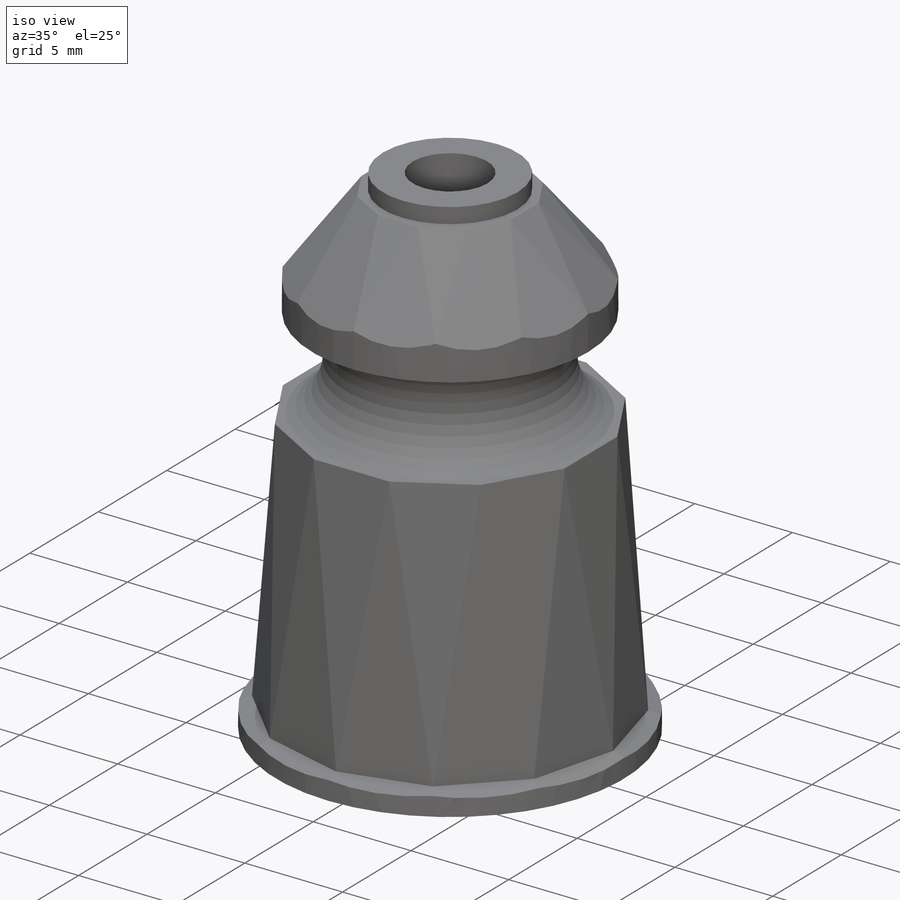
[diagram: iso view]
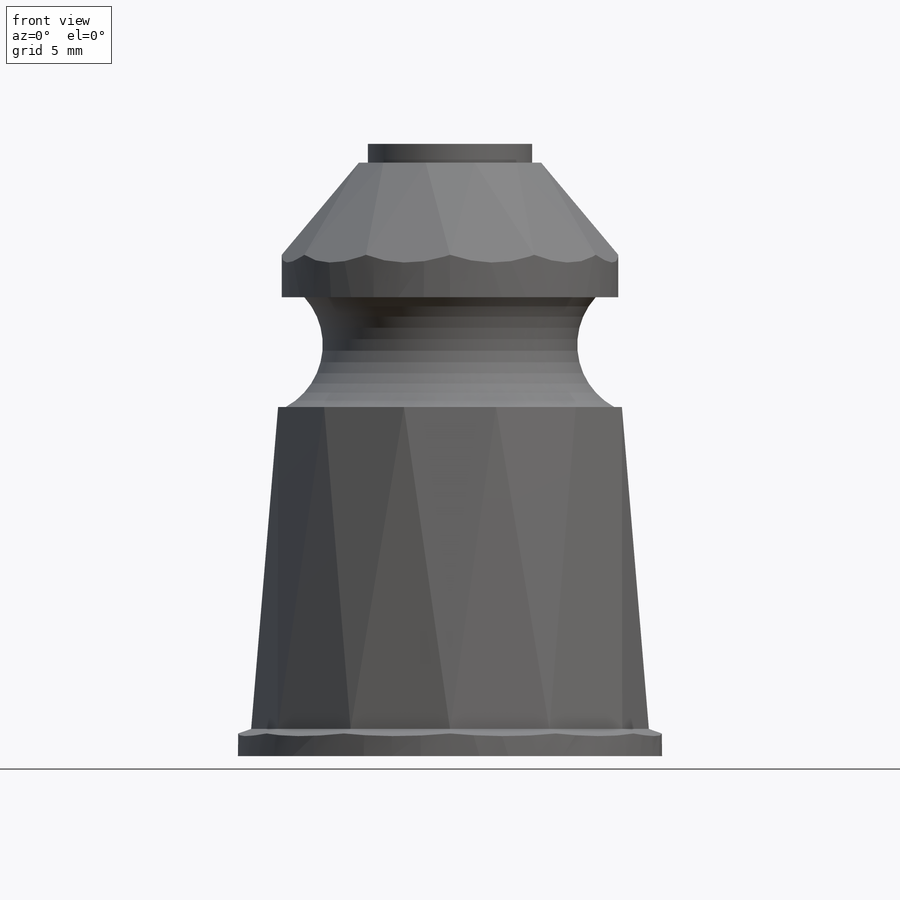
[diagram: front view]
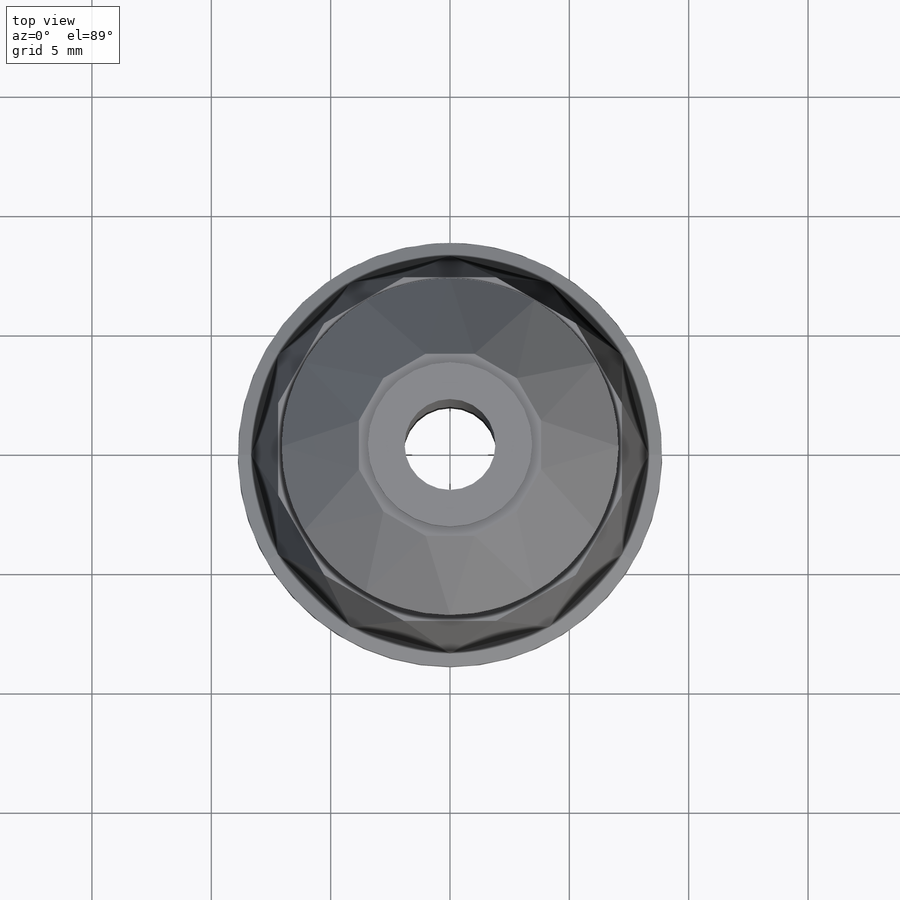
[diagram: top view]
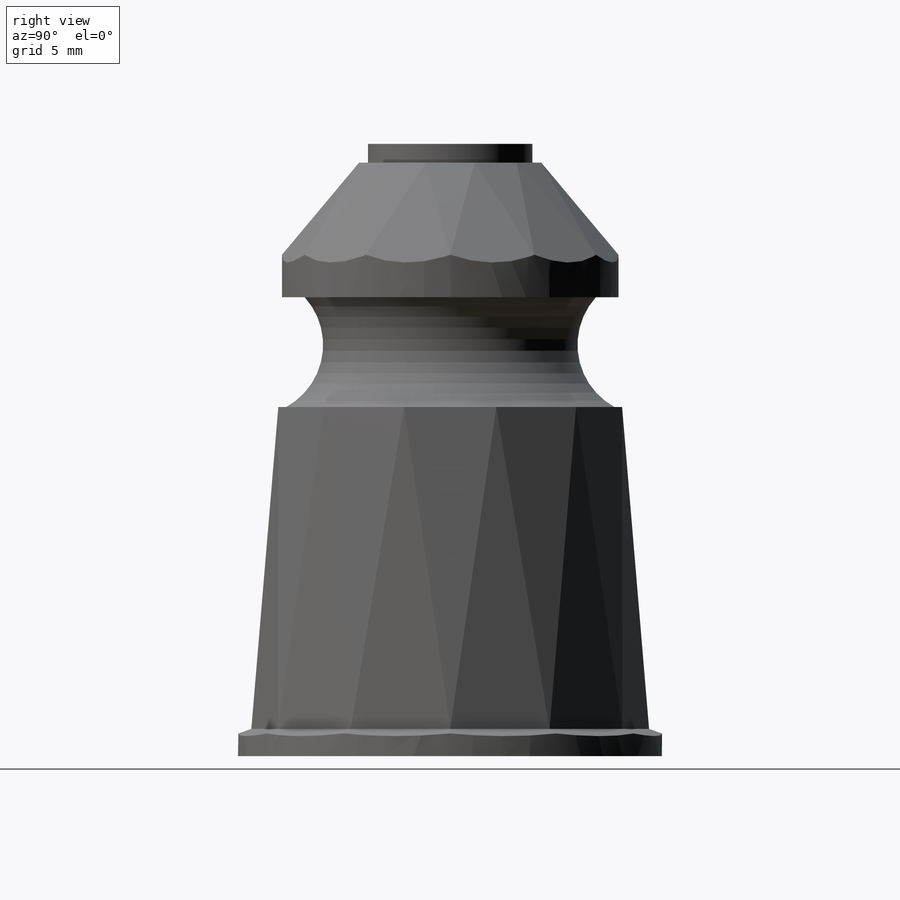
[diagram: right view]
SOLIDWORKS PART (.sldprt)
format: sldprt  version: not decoded by parser v0  size: 551,424 bytes
history: native  units: mm
features: sketch x16, cut_extrude x9, pattern_circular x4, plane x3, fillet x3, material x1, extrude x1, revolve x1 (+12 scaffold rows collapsed)
feature tree (50):
  scaffold x12  (default folders/planes/origin — collapsed)
  material  "CA"
  sketch  "Sketch1"  dims[D1=17.78mm]
  extrude  "Boss-Extrude1"  Depth=1.143mm
  plane  "Plane1"  Offset=14.6304mm
  sketch  "Sketch2"  dims[D1=14.9098mm]
  sketch  "Sketch3"  dims[D1=16.6624mm]
  sketch  "Sketch5"  dims[D1=0.254mm D2=~13.558254mm]
  cut_extrude  "Cut-Extrude1"  [1 undecoded]
  pattern_circular  "CirPattern1"  Count=12 Angle=360deg
  plane  "Plane2"
  sketch  "Sketch7"
  sketch  "Sketch8"  dims[c1.D1=~13.500405mm c2.D1=0.25deg c3.D1=~6.015216mm c3.D2=~6.015216mm c4.D2=20.0deg]
  cut_extrude  "Cut-Extrude3"  [1 undecoded]
  pattern_circular  "CirPattern2"  Count=12 Angle=360deg
  sketch  "Sketch9"  dims[c1.D3=~1.701487mm c1.D1=~6.880564mm c1.D2=~0.94307mm c2.D3=10.668mm c2.D4=19.2278mm c2.D5=14.097mm c2.D6=25.654mm c2.D7=0.7874mm c2.D8=6.8834mm c2.D9=0.508mm c2.D10=1.778mm]
  revolve  "Revolve1"  Angle=360deg
  sketch  "Sketch10"  dims[D1=~0.13335mm]
  cut_extrude  "Cut-Extrude4"  [1 undecoded]
  pattern_circular  "CirPattern3"  Count=12 Angle=30deg
  plane  "Plane3"
  sketch  "Sketch12"
  sketch  "Sketch13"  dims[D1=~1.905415mm]
  cut_extrude  "Cut-Extrude5"  [1 undecoded]
  pattern_circular  "CirPattern4"  Count=12 Angle=360deg
  sketch  "Sketch14"  dims[D1=3.81mm]
  cut_extrude  "Cut-Extrude6"  [1 undecoded]
  sketch  "Sketch15"  dims[D1=5.8674mm D2=12.7mm]
  cut_extrude  "Cut-Extrude7"  Depth=14.6304mm
  fillet  "Fillet1"  Radius=0.762mm
  sketch  "Sketch16"  dims[D1=~10.141428mm D2=13.462mm]
  cut_extrude  "Cut-Extrude8"  Depth=2.032mm
  sketch  "Sketch17"  dims[D1=~14.498444mm D2=~9.808679mm]
  cut_extrude  "Cut-Extrude9"  Depth=1.016mm
  sketch  "Sketch18"  dims[D1=0.0mm]
  cut_extrude  "Cut-Extrude10"  Depth=0.508mm
  fillet  "Fillet2"  Radius=0.508mm
  sketch  "Sketch21"  dims[D1=1.016mm D3=1.0deg]
  fillet  "Fillet3"  Radius=0.508mm
decode coverage: 27 of 34 modeling features carry decoded parameters
note: ~ marks probable driven/reference dimensions
note: 5 parameter values undecoded
summary: no parameter record found for 5 features
note: suppression state not decoded; provenance and decode notes live in map.json
